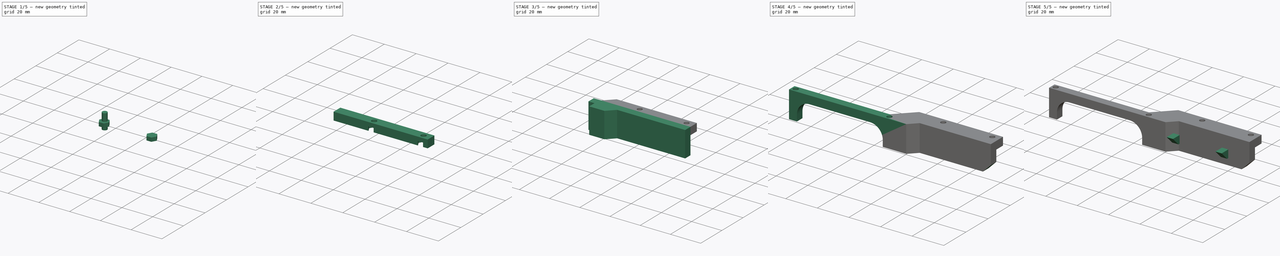
[diagram: build sequence overview — one tinted view per stage of 5, left to right]
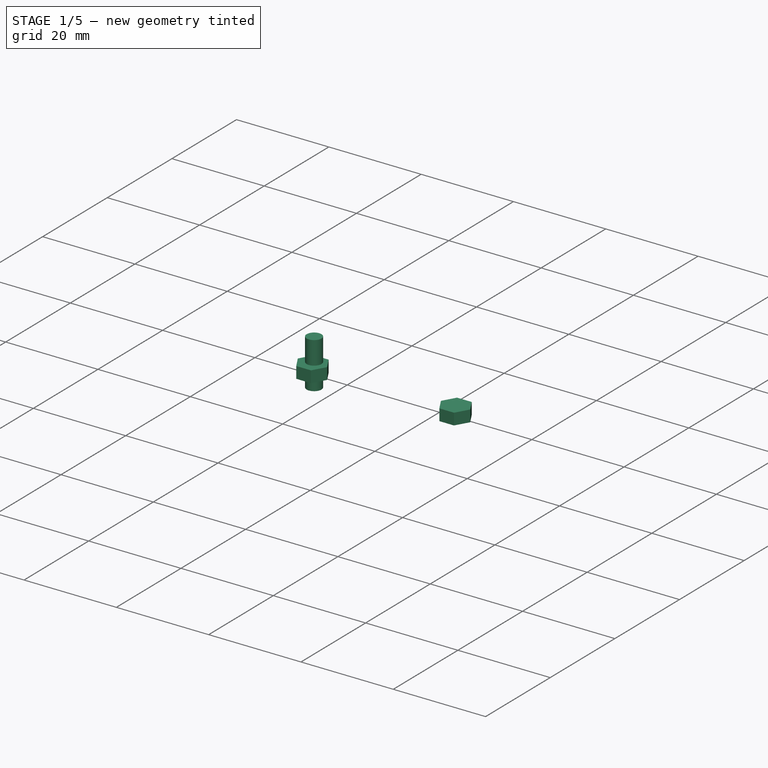
[diagram: stage 1 of 5 — iso view after this stage's code; geometry added in this stage tinted green]
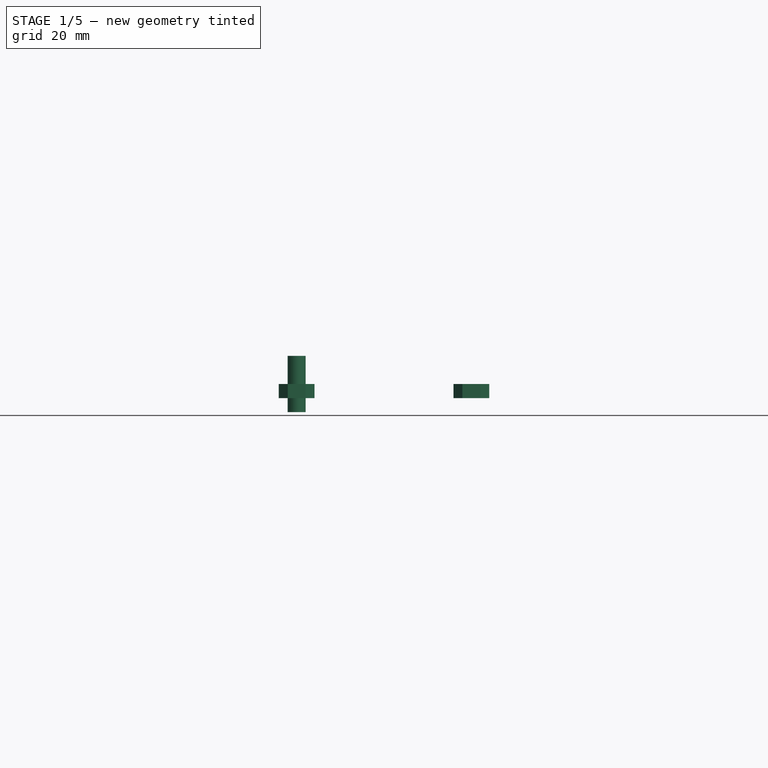
[diagram: stage 1 of 5 — front view after this stage's code; geometry added in this stage tinted green]
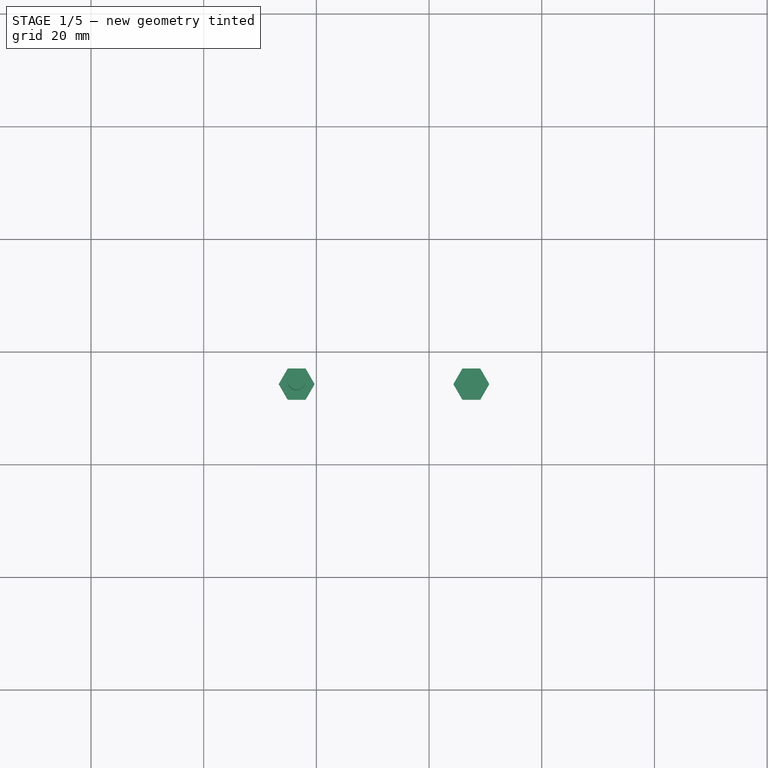
[diagram: stage 1 of 5 — top view after this stage's code; geometry added in this stage tinted green]
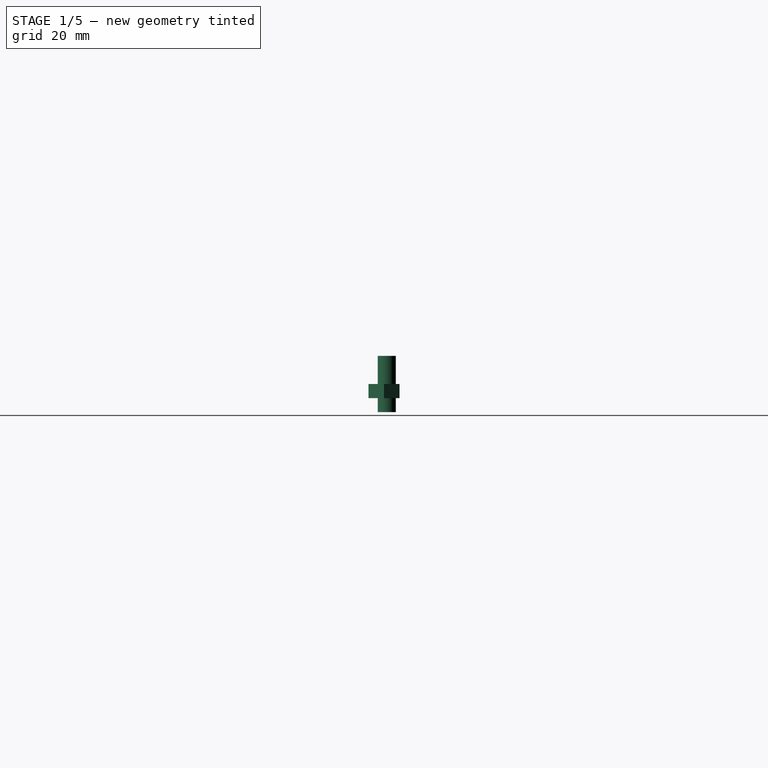
[diagram: stage 1 of 5 — right view after this stage's code; geometry added in this stage tinted green]
FCSTD DOCUMENT  (FreeCAD 0.18R14090 (Git))
Label: ExtruderDriveHolder1_Alt
License: All rights reserved
LicenseURL: http://en.wikipedia.org/wiki/All_rights_reserved
objects: Part::Box×5, Part::MultiFuse×4, Part::Chamfer×4, Sketcher::SketchObject×3, PartDesign::Pad×2, PartDesign::Body×2, Part::Cylinder×2, Part::Cut×2, PartDesign::Pocket×1, PartDesign::FeatureBase×1, App::Part×1, Part::FeaturePython×1
note: 30 computed .brp shape members not serialized (recipe doc carries the construction recipe); baked Part::Feature solids carry a one-line shape summary decoded from their .brp

FEATURE [Part::Cylinder] Cylinder001  label="HolderClipScrewHole2"
  Angle = 360
  AttacherType = Attacher::AttachEngine3D
  Height = 10
  Placement = pos=(56.5,-5.25,9.5) rot=(1,0,0;0rad)
  Radius = 1.6
FEATURE [Sketcher::SketchObject] Sketch002  label="NutBaseSketch"
  MapMode = 5
  Support = -> [XY_Plane002]
  sketch-geometry (7):
    g0: LineSegment StartX=1.58771 StartY=-2.75 StartZ=0 EndX=3.17543 EndY=3e-12 EndZ=0
    g1: LineSegment StartX=3.17543 StartY=3e-12 StartZ=0 EndX=1.58771 EndY=2.75 EndZ=0
    g2: LineSegment StartX=1.58771 StartY=2.75 StartZ=0 EndX=-1.58771 EndY=2.75 EndZ=0
    g3: LineSegment StartX=-1.58771 StartY=2.75 StartZ=0 EndX=-3.17543 EndY=2e-12 EndZ=0
    g4: LineSegment StartX=-3.17543 StartY=2e-12 StartZ=0 EndX=-1.58771 EndY=-2.75 EndZ=0
    g5: LineSegment StartX=-1.58771 StartY=-2.75 StartZ=0 EndX=1.58771 EndY=-2.75 EndZ=0
    g6: Circle [constr] CenterX=0 CenterY=0 CenterZ=0 NormalX=0 NormalY=0 NormalZ=1 AngleXU=0 Radius=3.17543
  constraints (16):
    c: Coincident(g0,g1)
    c: Coincident(g1,g2)
    c: Coincident(g2,g3)
    c: Coincident(g3,g4)
    c: Coincident(g4,g5)
    c: Coincident(g5,g0)
    c: Equal(g0, g1-g5) x5
    c: PointOnObject(g0,g6)
    c: PointOnObject(g1,g6)
    c: PointOnObject(g2,g6)
    c: PointOnObject(g3,g6)
    c: PointOnObject(g4,g6)
    c: PointOnObject(g5,g6)
    c: Coincident(g6,g-1)
    c: Horizontal(g2)
    c: Distance(g1,g0) = 5.5
FEATURE [PartDesign::Pad] Pad001  label="NutBasePad"
  Length = 2.5
  Length2 = 100
  Profile = -> Sketch002
  Type = 0
FEATURE [PartDesign::Body] Body001  label="NutBody"
  Group = -> [Sketch002,Pad001]
  Origin = -> Origin002
  Placement = pos=(87.5,-5.25,12) rot=(0,0,1;0rad)
  Tip = -> Pad001
FEATURE [PartDesign::FeatureBase] Clone  label="NutBodyClone"
  BaseFeature = -> Body001
  Placement = pos=(56.5,-5.25,12) rot=(0,0,1;0rad)
FEATURE [Part::MultiFuse] Fusion001  label="NutsFusion"
  Placement = pos=(0,-0.5,0) rot=(0,0,1;0rad)
  Shapes = -> [Body001,Clone]
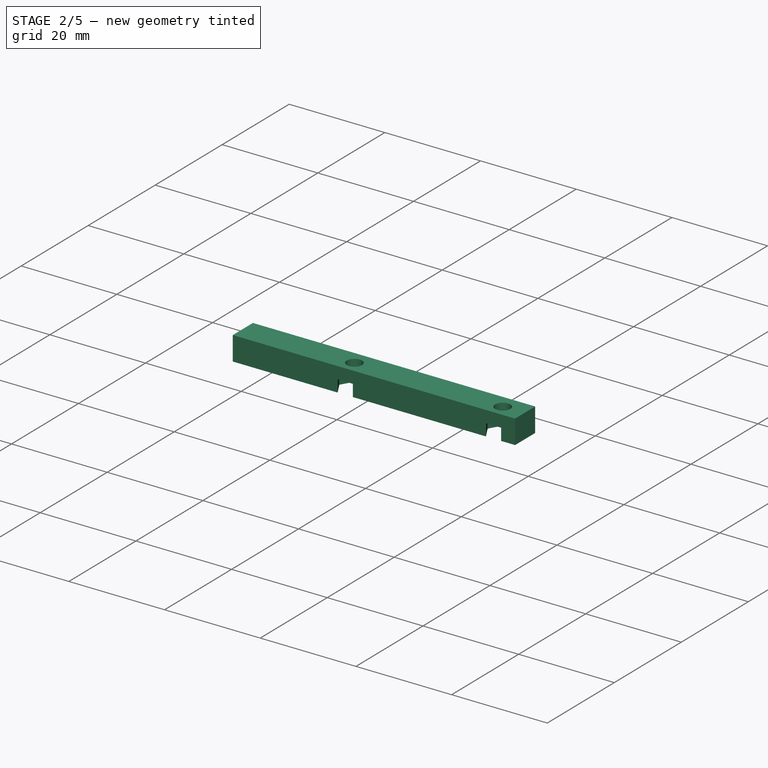
[diagram: stage 2 of 5 — iso view after this stage's code; geometry added in this stage tinted green]
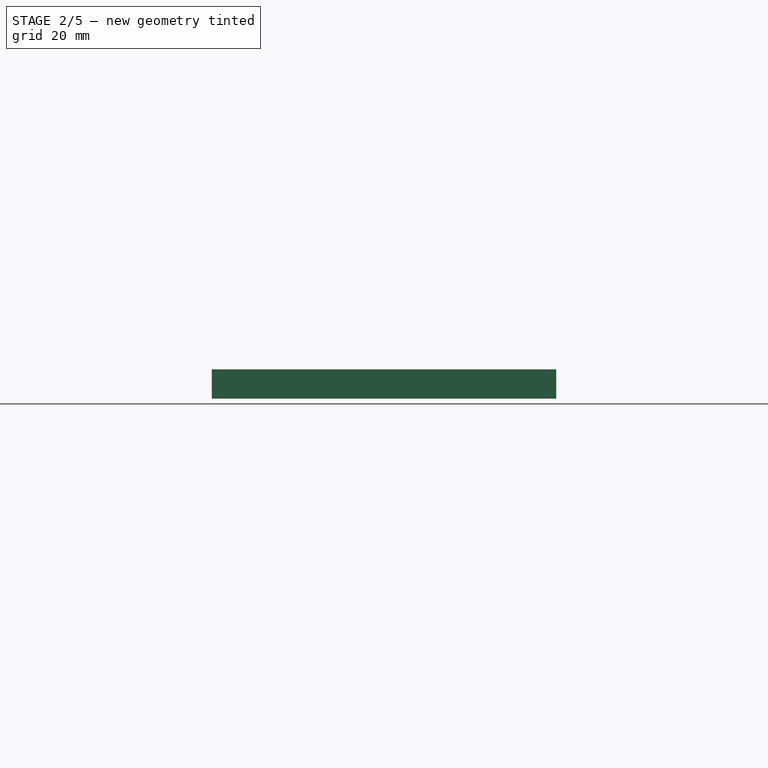
[diagram: stage 2 of 5 — front view after this stage's code; geometry added in this stage tinted green]
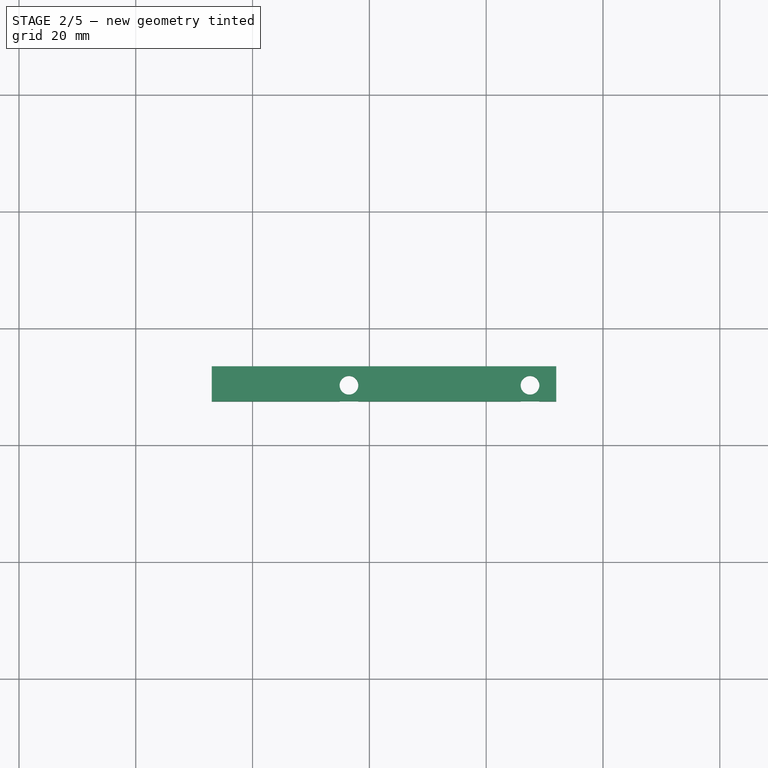
[diagram: stage 2 of 5 — top view after this stage's code; geometry added in this stage tinted green]
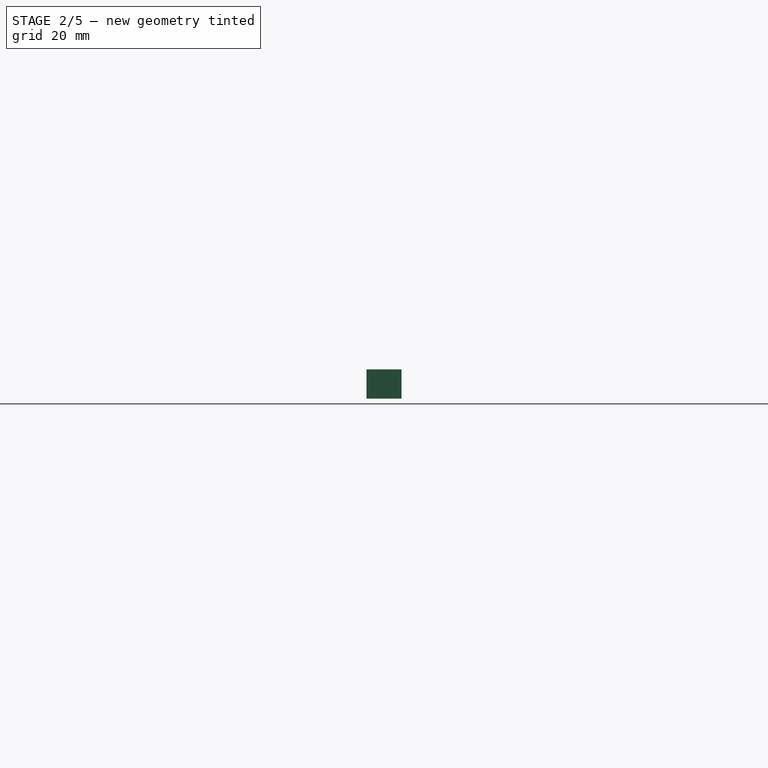
[diagram: stage 2 of 5 — right view after this stage's code; geometry added in this stage tinted green]
FEATURE [Part::Cylinder] Cylinder  label="HolderClipScrewHole1"
  Angle = 360
  AttacherType = Attacher::AttachEngine3D
  Height = 10
  Placement = pos=(87.5,-5.25,9.5) rot=(1,0,0;0rad)
  Radius = 1.6
FEATURE [Part::Box] Box001  label="ExtruderClipCube"
  AttacherType = Attacher::AttachEngine3D
  Height = 5
  Length = 59
  Placement = pos=(33,-8.5,12) rot=(0,0,1;0rad)
  Width = 6
FEATURE [Part::MultiFuse] Fusion  label="HolderClipScrewHolesFusion"
  Placement = pos=(0,-0.5,0) rot=(0,0,1;0rad)
  Shapes = -> [Cylinder,Cylinder001]
FEATURE [Part::Cut] Cut  label="ExtruderClipScrewHolesCut"
  Base = -> Box001
  Tool = -> Fusion
FEATURE [Part::Cut] Cut001  label="ExtruderClipNutsCut"
  Base = -> Cut
  Placement = pos=(0,16,0) rot=(0,0,1;0rad)
  Tool = -> Fusion001
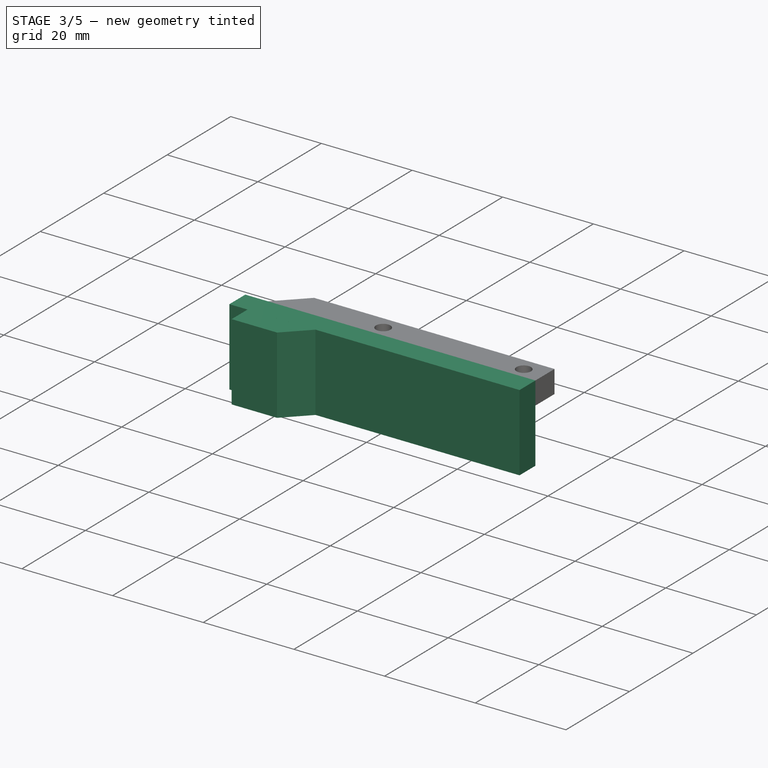
[diagram: stage 3 of 5 — iso view after this stage's code; geometry added in this stage tinted green]
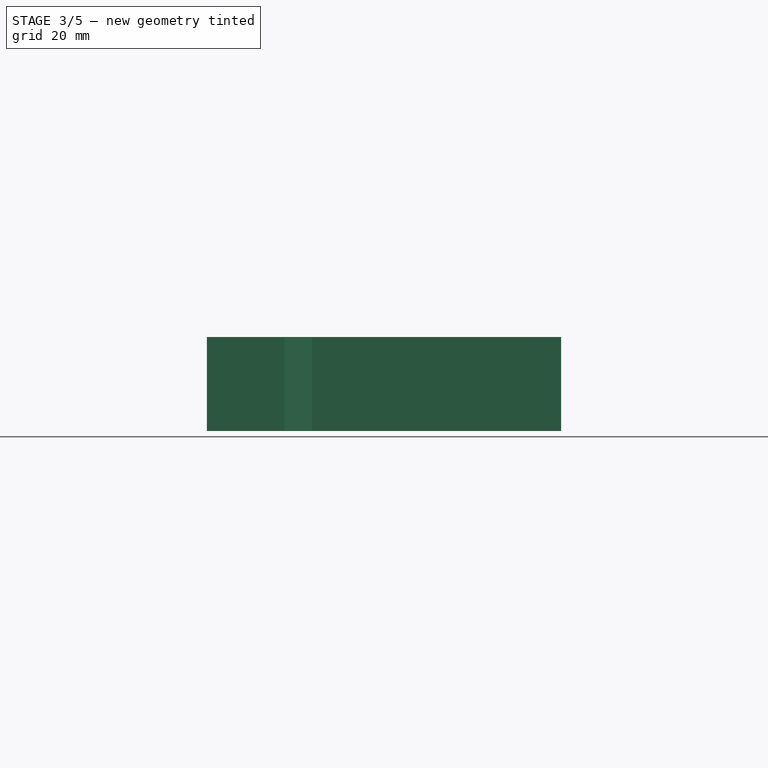
[diagram: stage 3 of 5 — front view after this stage's code; geometry added in this stage tinted green]
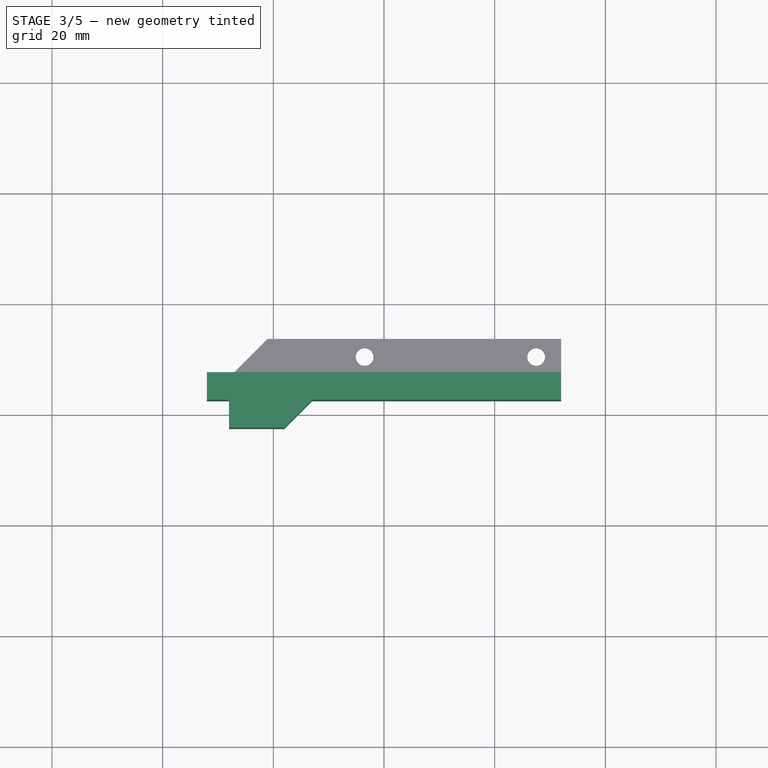
[diagram: stage 3 of 5 — top view after this stage's code; geometry added in this stage tinted green]
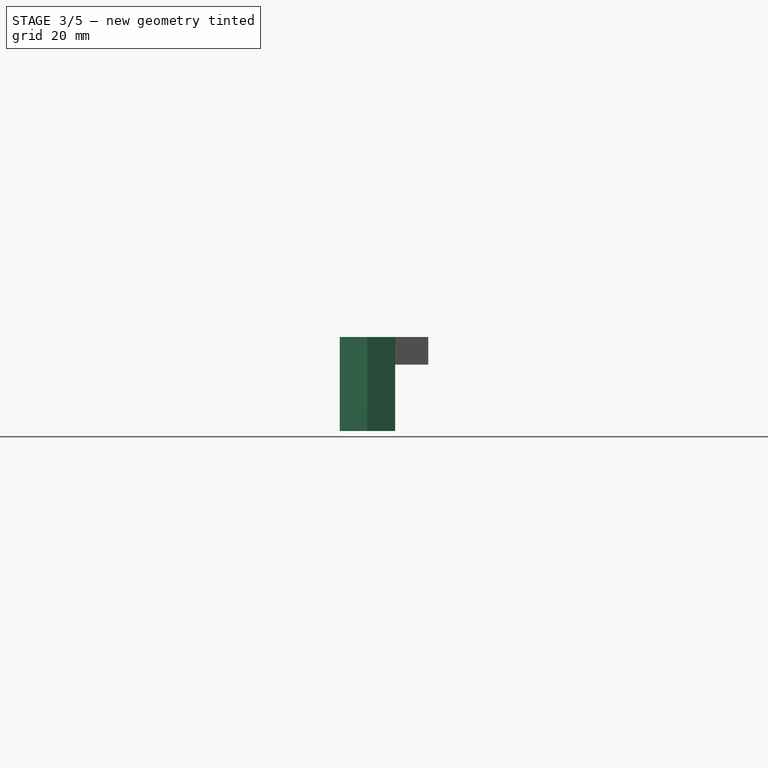
[diagram: stage 3 of 5 — right view after this stage's code; geometry added in this stage tinted green]
FEATURE [PartDesign::Body] Body  label="HolderClipBody"
  Group = -> [Sketch,Pad,Sketch001,Pocket]
  Origin = -> Origin001
  Tip = -> Pocket
FEATURE [Part::Box] Box  label="HolderClipCube1"
  AttacherType = Attacher::AttachEngine3D
  Height = 17
  Length = 15
  Placement = pos=(32,-2.5,0) rot=(0,0,1;0rad)
  Width = 5
FEATURE [Part::Box] Box004  label="HolderClipCube2"
  AttacherType = Attacher::AttachEngine3D
  Height = 17
  Length = 64
  Placement = pos=(28,2.5,0) rot=(0,0,1;0rad)
  Width = 5
FEATURE [Part::Chamfer] Chamfer002  label="HolderClipCube1Chamfer"
  Base = -> Box
  Edges = 1 edges r=4.99: [Edge5]
FEATURE [Part::Chamfer] Chamfer003  label="ExtruderClipNutsChamfer"
  Base = -> Cut001
  Edges = 1 edges r=5.99: [Edge3]
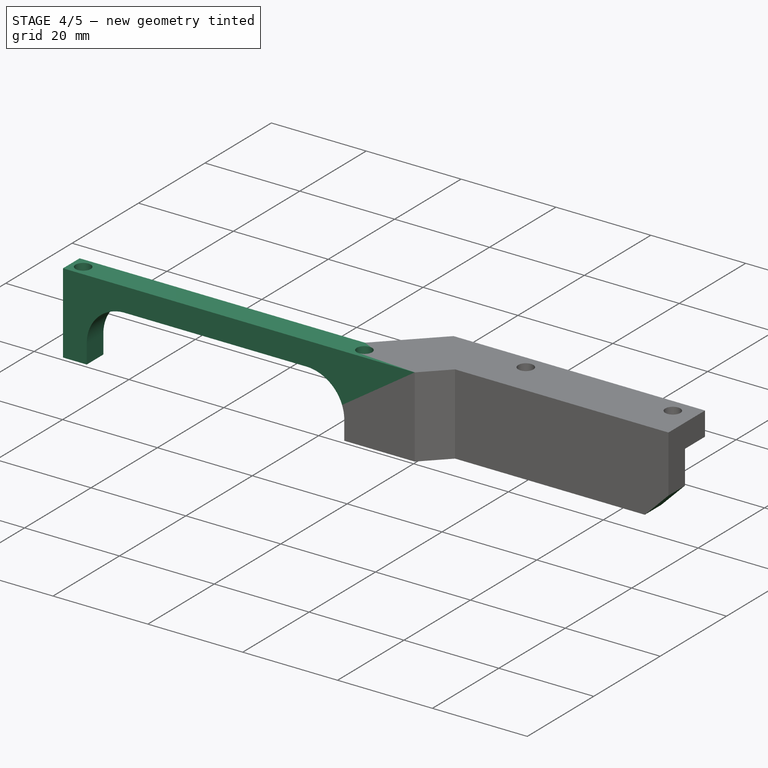
[diagram: stage 4 of 5 — iso view after this stage's code; geometry added in this stage tinted green]
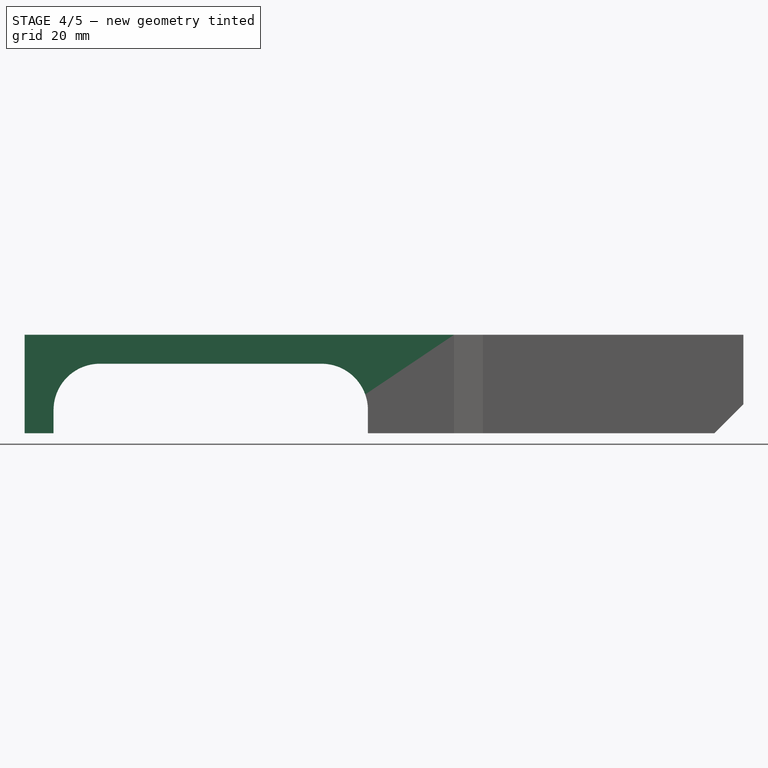
[diagram: stage 4 of 5 — front view after this stage's code; geometry added in this stage tinted green]
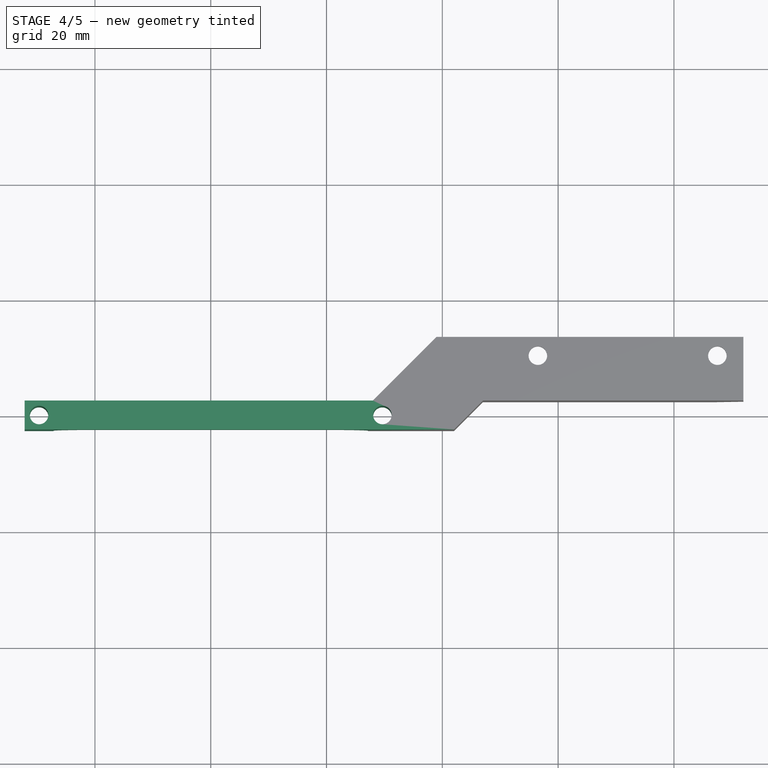
[diagram: stage 4 of 5 — top view after this stage's code; geometry added in this stage tinted green]
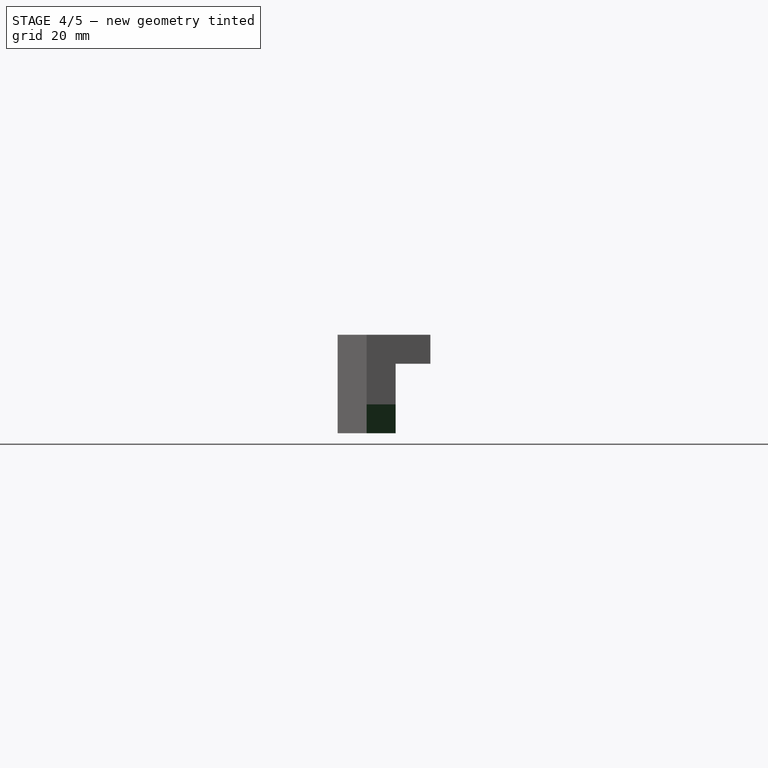
[diagram: stage 4 of 5 — right view after this stage's code; geometry added in this stage tinted green]
FEATURE [Sketcher::SketchObject] Sketch  label="HC_BaseSketch"
  MapMode = 5
  Placement = pos=(0,0,0) rot=(1,0,0;1.5708rad)
  Support = -> [XZ_Plane001]
  sketch-geometry (17):
    g0: ArcOfCircle CenterX=-19.15 CenterY=4 CenterZ=0 NormalX=0 NormalY=0 NormalZ=1 AngleXU=0 Radius=8 StartAngle=1.5708 EndAngle=3.14159
    g1: ArcOfCircle CenterX=19.15 CenterY=4 CenterZ=0 NormalX=0 NormalY=0 NormalZ=1 AngleXU=0 Radius=8 StartAngle=0 EndAngle=1.5708
    g2: LineSegment StartX=-27.15 StartY=0 StartZ=0 EndX=-27.15 EndY=4 EndZ=0
    g3: LineSegment StartX=27.15 StartY=0 StartZ=0 EndX=27.15 EndY=4 EndZ=0
    g4: LineSegment [constr] StartX=27.15 StartY=4 StartZ=0 EndX=32.15 EndY=4 EndZ=0
    g5: LineSegment [constr] StartX=-19.15 StartY=4 StartZ=0 EndX=-27.15 EndY=4 EndZ=0
    g6: LineSegment [constr] StartX=19.15 StartY=4 StartZ=0 EndX=27.15 EndY=4 EndZ=0
    g7: LineSegment [constr] StartX=19.15 StartY=12 StartZ=0 EndX=19.15 EndY=4 EndZ=0
    g8: LineSegment [constr] StartX=-19.15 StartY=12 StartZ=0 EndX=-19.15 EndY=4 EndZ=0
    g9: LineSegment StartX=32.15 StartY=0 StartZ=0 EndX=32.15 EndY=17 EndZ=0
    g10: LineSegment StartX=-32.15 StartY=0 StartZ=0 EndX=-32.15 EndY=17 EndZ=0
    g11: LineSegment StartX=-32.15 StartY=17 StartZ=0 EndX=32.15 EndY=17 EndZ=0
    g12: LineSegment StartX=-19.15 StartY=12 StartZ=0 EndX=19.15 EndY=12 EndZ=0
    g13: LineSegment [constr] StartX=-27.15 StartY=4 StartZ=0 EndX=-32.15 EndY=4 EndZ=0
    g14: LineSegment [constr] StartX=-19.15 StartY=12 StartZ=0 EndX=-19.15 EndY=17 EndZ=0
    g15: LineSegment StartX=-27.15 StartY=0 StartZ=0 EndX=-32.15 EndY=0 EndZ=0
    g16: LineSegment StartX=27.15 StartY=0 StartZ=0 EndX=32.15 EndY=0 EndZ=0
  constraints (48):
    c: PointOnObject(g2,g-1)
    c: Symmetric(g3,g2,g-2)
    c: Coincident(g2,g0)
    c: Vertical(g2)
    c: Coincident(g3,g1)
    c: Vertical(g3)
    c: Equal(g2,g3)
    c: Coincident(g4,g1)
    c: Horizontal(g4)
    c: Coincident(g5,g0)
    c: Coincident(g5,g0)
    c: Coincident(g6,g1)
    c: Coincident(g6,g1)
    c: Horizontal(g6)
    c: Horizontal(g5)
    c: Equal(g5,g6)
    c: Angle(g1) = 1.5708
    c: Distance(g3) = 4
    c: Coincident(g7,g1)
    c: Coincident(g7,g1)
    c: Coincident(g8,g0)
    c: Coincident(g8,g0)
    c: Distance(g5) = 8
    c: Angle(g0) = 1.5708
    c: PointOnObject(g9,g-1)
    c: Vertical(g9)
    c: PointOnObject(g10,g-1)
    c: Vertical(g10)
    c: Coincident(g11,g10)
    c: Coincident(g11,g9)
    c: Coincident(g12,g0)
    c: Coincident(g12,g1)
    c: Horizontal(g11)
    c: PointOnObject(g4,g9)
    c: Distance(g4) = 5
    c: Coincident(g13,g0)
    c: PointOnObject(g13,g10)
    c: Horizontal(g13)
    c: Equal(g4,g13)
    c: Coincident(g14,g0)
    c: PointOnObject(g14,g11)
    c: Vertical(g14)
    c: Equal(g14,g13)
    c: Coincident(g15,g2)
    c: Coincident(g15,g10)
    c: Coincident(g16,g3)
    c: Coincident(g16,g9)
    c: Distance(g12) = 38.3
FEATURE [PartDesign::Pad] Pad  label="HC_BasePad"
  Length = 5
  Length2 = 100
  Midplane = true
  Placement = pos=(0,0,0) rot=(1,0,0;1.5708rad)
  Profile = -> Sketch
  Type = 0
FEATURE [Sketcher::SketchObject] Sketch001  label="HC_ClipHolesSketch"
  ExternalGeometry = -> [Sketch]
  MapMode = 5
  Support = -> [XY_Plane001]
  sketch-geometry (4):
    g0: LineSegment [constr] StartX=-27.15 StartY=0 StartZ=0 EndX=-29.65 EndY=0 EndZ=0
    g1: LineSegment [constr] StartX=-29.65 StartY=0 StartZ=0 EndX=-32.15 EndY=-1e-12 EndZ=0
    g2: Circle CenterX=-29.65 CenterY=0 CenterZ=0 NormalX=0 NormalY=0 NormalZ=1 AngleXU=0 Radius=1.6
    g3: Circle CenterX=29.65 CenterY=0 CenterZ=0 NormalX=0 NormalY=0 NormalZ=1 AngleXU=0 Radius=1.6
  constraints (9):
    c: Coincident(g0,g-4)
    c: Coincident(g1,g0)
    c: Coincident(g1,g-3)
    c: Equal(g1,g0)
    c: PointOnObject(g0,g-1)
    c: Coincident(g2,g0)
    c: Symmetric(g2,g3,g-2)
    c: Equal(g2,g3)
    c: Radius(g2) = 1.6
FEATURE [PartDesign::Pocket] Pocket  label="HC_ClipHolesPocket"
  BaseFeature = -> Pad
  Length = 5
  Length2 = 100
  Placement = pos=(0,0,0) rot=(1,0,0;1.5708rad)
  Profile = -> Sketch001
  Reversed = true
  Type = 1
FEATURE [Part::Chamfer] Chamfer001  label="HolderClipCube2Chamfer"
  Base = -> Box004
  Edges = 2 edges r=4.99: [Edge3,Edge8]
FEATURE [Part::MultiFuse] Fusion004  label="HolderFusion"
  Shapes = -> [Body,Chamfer001,Chamfer002,Chamfer003]
FEATURE [App::Part] Part  label="HolderPart"
  Group = -> [Body,Box,Cylinder,Box001,Cylinder001,Fusion,Cut,Body001,Clone,Fusion001,Cut001,Box002,Box003,Fusion003,Chamfer,Box004,Chamfer001,Chamfer002,Chamfer003,Fusion004]
  License = CC BY 3.0
  LicenseURL = http://creativecommons.org/licenses/by/3.0/
  Origin = -> Origin
FEATURE [Part::FeaturePython] refine  label="HolderFusion_Refined"  # WARN: FeaturePython — macro-defined, semantics opaque (R4)
  Base = -> Fusion004
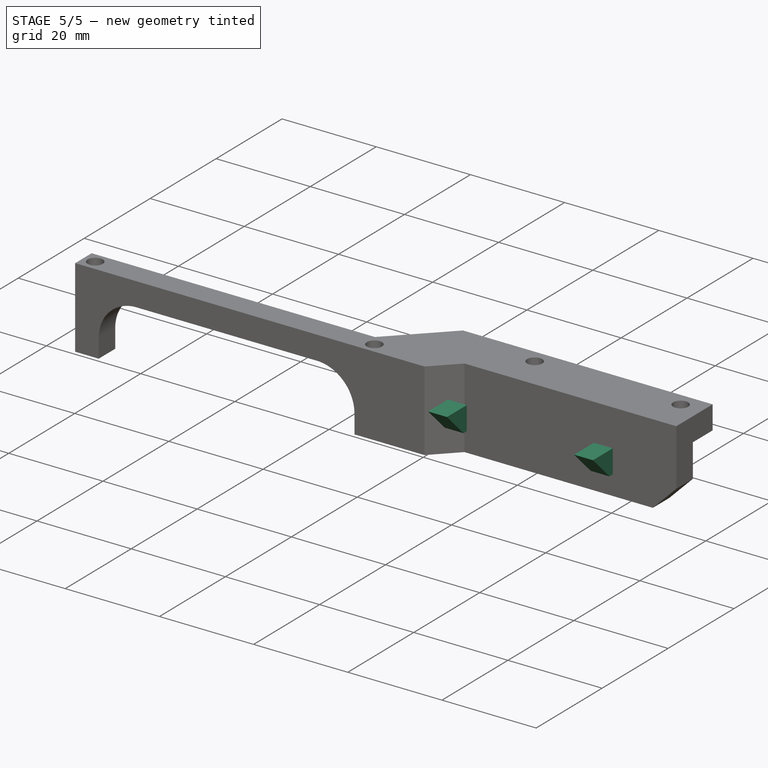
[diagram: stage 5 of 5 — iso view after this stage's code; geometry added in this stage tinted green]
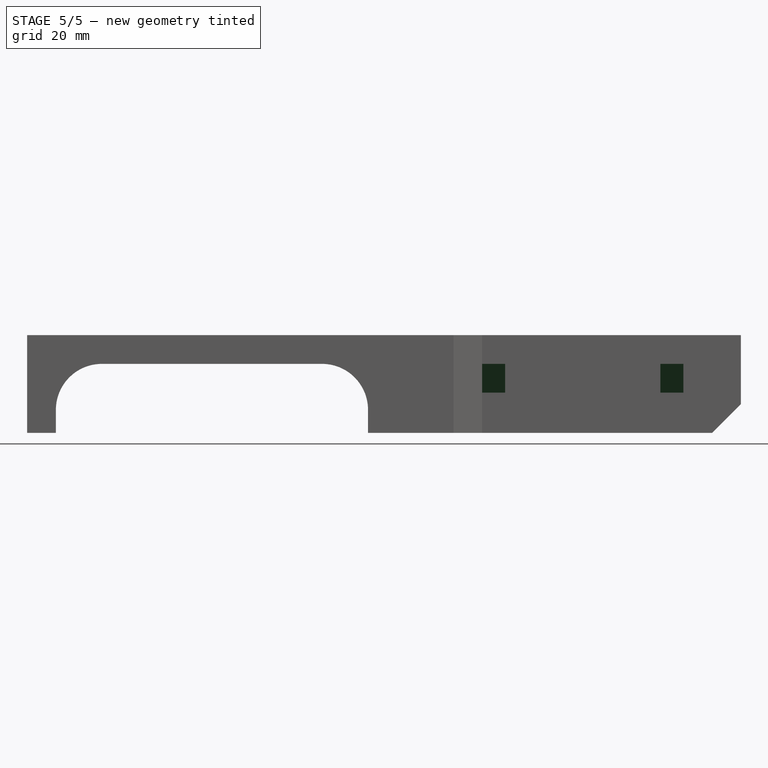
[diagram: stage 5 of 5 — front view after this stage's code; geometry added in this stage tinted green]
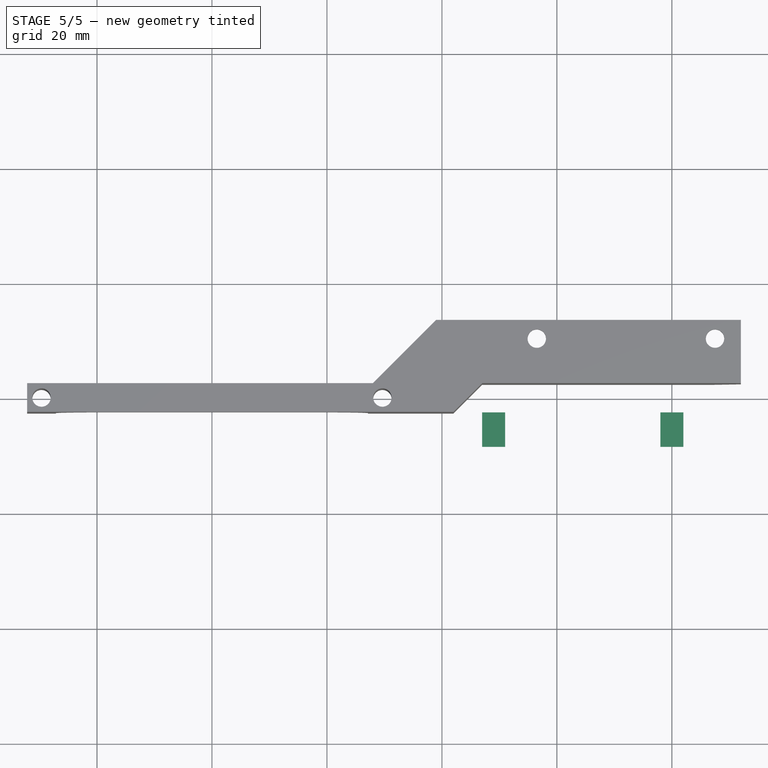
[diagram: stage 5 of 5 — top view after this stage's code; geometry added in this stage tinted green]
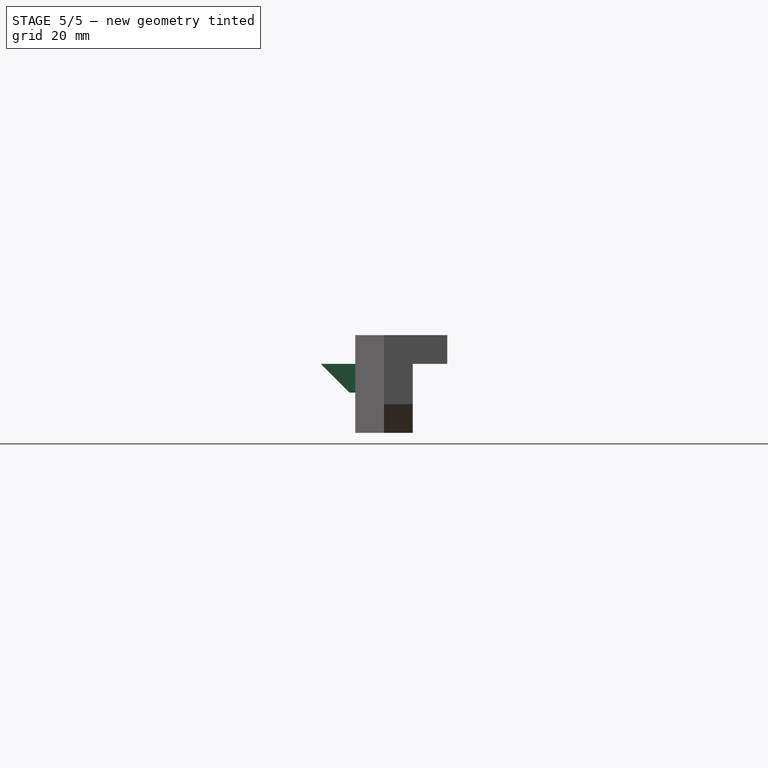
[diagram: stage 5 of 5 — right view after this stage's code; geometry added in this stage tinted green]
FEATURE [Part::Box] Box002  label="StiffenerCube1"
  AttacherType = Attacher::AttachEngine3D
  Height = 5
  Length = 4
  Placement = pos=(47,-8.5,7) rot=(0,0,1;0rad)
  Width = 6
FEATURE [Part::Box] Box003  label="StiffenerCube2"
  AttacherType = Attacher::AttachEngine3D
  Height = 5
  Length = 4
  Placement = pos=(78,-8.5,7) rot=(0,0,1;0rad)
  Width = 6
FEATURE [Part::MultiFuse] Fusion003  label="StiffenerCubesFusion"
  Shapes = -> [Box002,Box003]
FEATURE [Part::Chamfer] Chamfer  label="StiffenerChamfer"
  Base = -> Fusion003
  Edges = 2 edges r=4.99: [Edge9,Edge21]
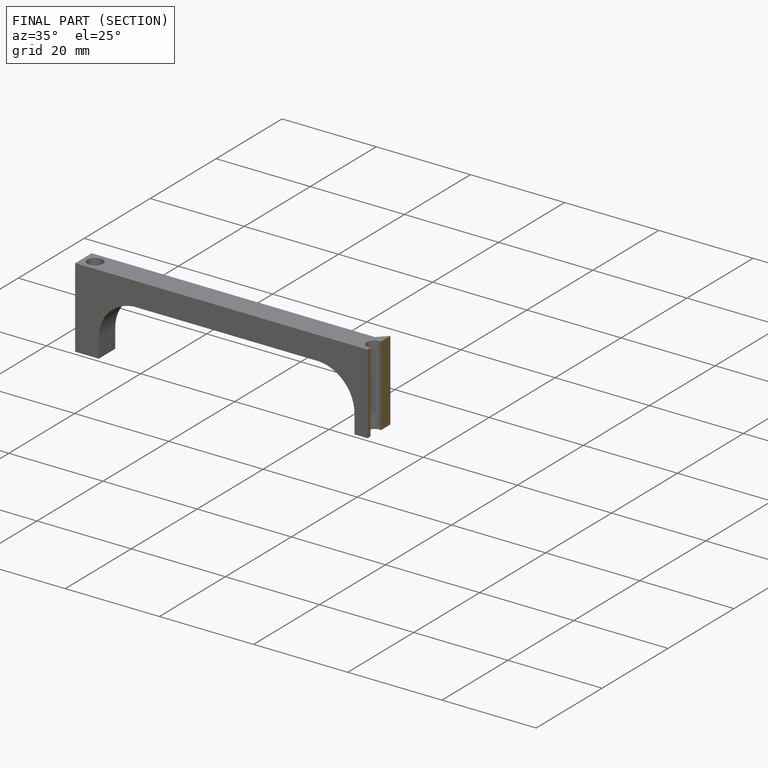
[diagram: finished part — half-section view (interior)]
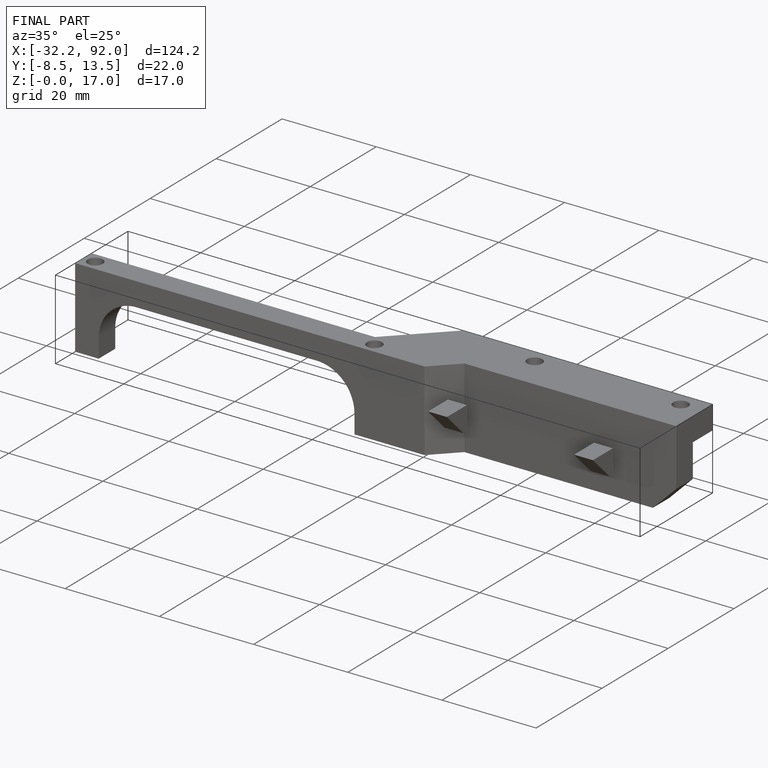
[diagram: finished part — iso view with bounding-box wireframe]
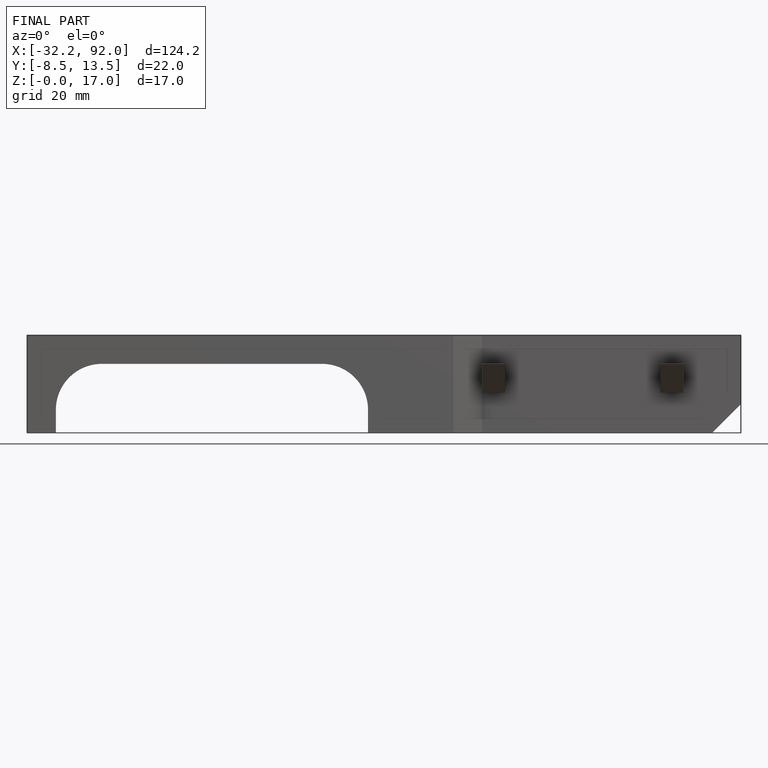
[diagram: finished part — front view with bounding-box wireframe]
